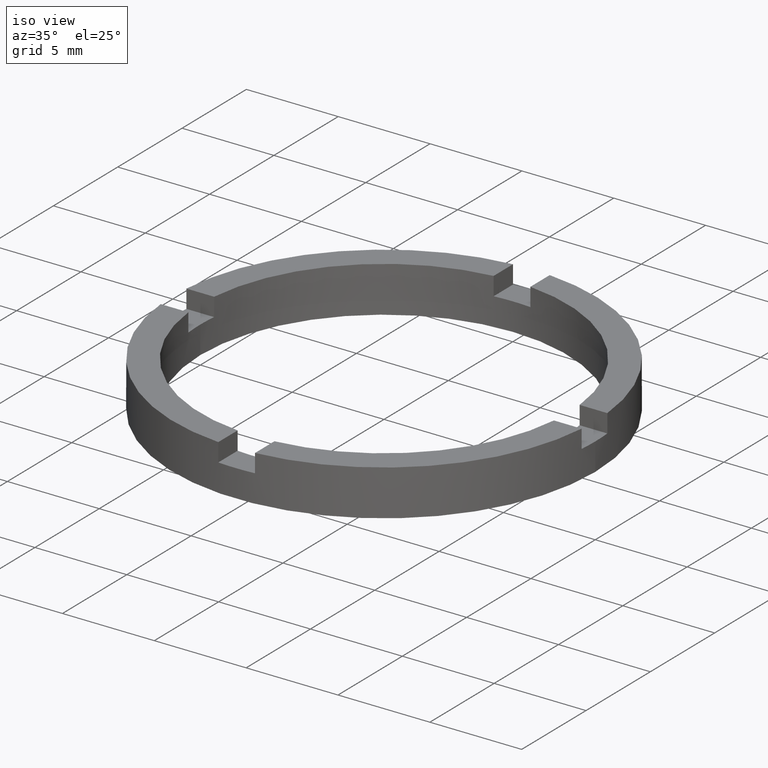
[diagram: clean part render]
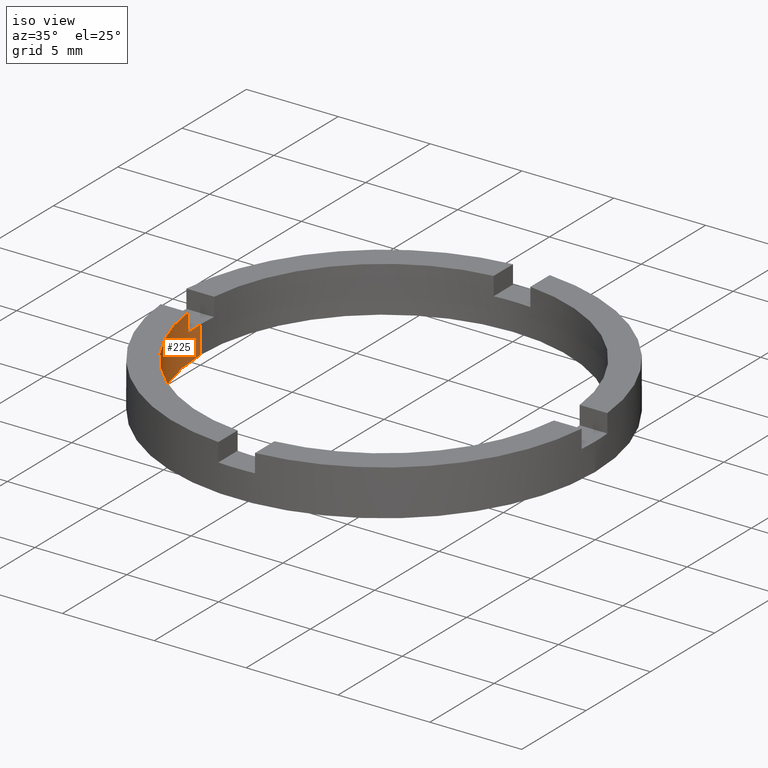
[diagram: same view with one face highlighted and labeled with its STEP entity id]
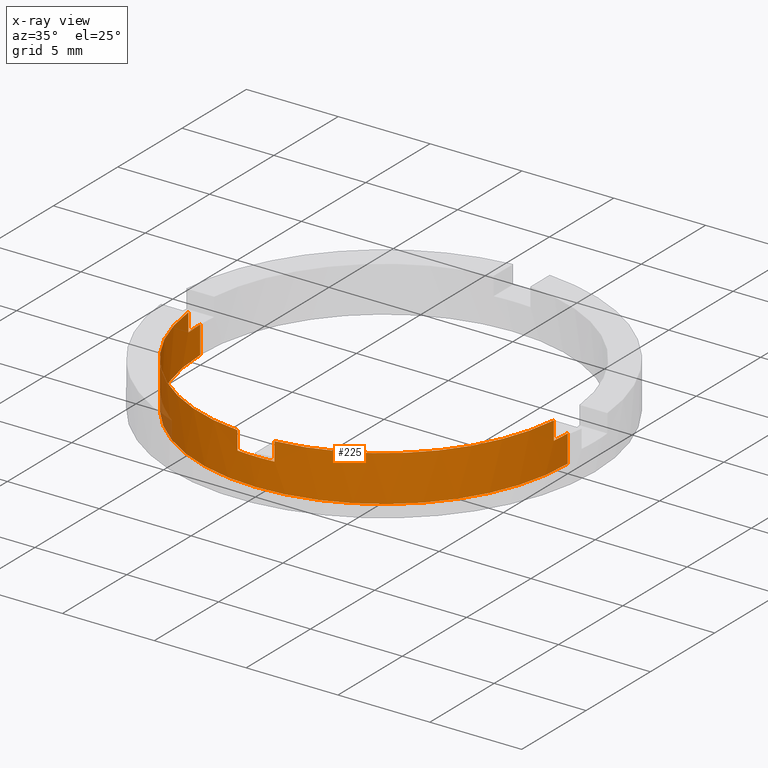
[diagram: x-ray of the same camera — body ghosted, the highlighted face saturated]
A machine part, iso view. The second image highlights one B-rep face of the part: STEP entity #225.
The next image is the same camera in x-ray: the body ghosted, the highlighted face saturated — about 1% of this face is hidden behind the body in this view.
In plain terms, the highlighted cylindrical surface (partial cylindrical patch) has radius 10 mm, axis along (-0, -0, -1).
Its self-contained STEP definition (entity closure, byte-faithful):
#7 = ORIENTED_EDGE ( 'NONE', *, *, #95, .F. ) ;
#13 = EDGE_CURVE ( 'NONE', #321, #689, #158, .T. ) ;
#18 = DIRECTION ( 'NONE',  ( -0.000000000000000000, -0.000000000000000000, -1.000000000000000000 ) ) ;
#19 = AXIS2_PLACEMENT_3D ( 'NONE', #138, #343, #533 ) ;
#26 = ORIENTED_EDGE ( 'NONE', *, *, #197, .T. ) ;
#29 = VERTEX_POINT ( 'NONE', #291 ) ;
#41 = VERTEX_POINT ( 'NONE', #611 ) ;
#45 = EDGE_CURVE ( 'NONE', #229, #321, #716, .T. ) ;
#57 = CARTESIAN_POINT ( 'NONE',  ( -1.000000000000163869, -9.949874371066179890, 2.500000000000000000 ) ) ;
#59 = EDGE_CURVE ( 'NONE', #316, #539, #708, .T. ) ;
#62 = DIRECTION ( 'NONE',  ( 1.000000000000000000, 0.000000000000000000, 0.000000000000000000 ) ) ;
#95 = EDGE_CURVE ( 'NONE', #29, #251, #421, .T. ) ;
#110 = DIRECTION ( 'NONE',  ( 1.000000000000000000, 0.000000000000000000, 0.000000000000000000 ) ) ;
#118 = CARTESIAN_POINT ( 'NONE',  ( -9.949874371066195877, -1.000000000000021760, 1.500000000000000000 ) ) ;
#130 = CIRCLE ( 'NONE', #484, 9.999999999999998224 ) ;
#132 = DIRECTION ( 'NONE',  ( -0.000000000000000000, -0.000000000000000000, -1.000000000000000000 ) ) ;
#138 = CARTESIAN_POINT ( 'NONE',  ( 0.000000000000000000, 0.000000000000000000, 1.500000000000000000 ) ) ;
#142 = LINE ( 'NONE', #779, #394 ) ;
#148 = CIRCLE ( 'NONE', #252, 9.999999999999998224 ) ;
#149 = VECTOR ( 'NONE', #283, 1000.000000000000000 ) ;
#155 = ORIENTED_EDGE ( 'NONE', *, *, #738, .F. ) ;
#158 = LINE ( 'NONE', #399, #448 ) ;
#161 = EDGE_LOOP ( 'NONE', ( #299, #762, #183, #155, #26, #7, #767, #241, #233, #504, #442, #219 ) ) ;
#170 = VERTEX_POINT ( 'NONE', #628 ) ;
#177 = DIRECTION ( 'NONE',  ( 0.000000000000000000, 0.000000000000000000, 1.000000000000000000 ) ) ;
#183 = ORIENTED_EDGE ( 'NONE', *, *, #527, .F. ) ;
#197 = EDGE_CURVE ( 'NONE', #41, #251, #718, .T. ) ;
#210 = CARTESIAN_POINT ( 'NONE',  ( -1.000000000000163869, -9.949874371066179890, 2.500000000000000000 ) ) ;
#219 = ORIENTED_EDGE ( 'NONE', *, *, #722, .F. ) ;
#225 = ADVANCED_FACE ( 'NONE', ( #682 ), #461, .F. ) ;
#228 = CARTESIAN_POINT ( 'NONE',  ( 0.000000000000000000, 0.000000000000000000, 1.500000000000000000 ) ) ;
#229 = VERTEX_POINT ( 'NONE', #630 ) ;
#233 = ORIENTED_EDGE ( 'NONE', *, *, #614, .T. ) ;
#238 = DIRECTION ( 'NONE',  ( -0.000000000000000000, -0.000000000000000000, -1.000000000000000000 ) ) ;
#241 = ORIENTED_EDGE ( 'NONE', *, *, #59, .F. ) ;
#242 = VERTEX_POINT ( 'NONE', #496 ) ;
#245 = DIRECTION ( 'NONE',  ( -0.000000000000000000, 0.000000000000000000, 1.000000000000000000 ) ) ;
#251 = VERTEX_POINT ( 'NONE', #118 ) ;
#252 = AXIS2_PLACEMENT_3D ( 'NONE', #505, #372, #253 ) ;
#253 = DIRECTION ( 'NONE',  ( 1.000000000000000000, 0.000000000000000000, 0.000000000000000000 ) ) ;
#269 = DIRECTION ( 'NONE',  ( -1.000000000000000000, 0.000000000000000000, 0.000000000000000000 ) ) ;
#283 = DIRECTION ( 'NONE',  ( 0.000000000000000000, 0.000000000000000000, 1.000000000000000000 ) ) ;
#288 = AXIS2_PLACEMENT_3D ( 'NONE', #228, #177, #486 ) ;
#291 = CARTESIAN_POINT ( 'NONE',  ( -9.949874371066195877, -1.000000000000021760, 2.500000000000000000 ) ) ;
#299 = ORIENTED_EDGE ( 'NONE', *, *, #45, .T. ) ;
#306 = CARTESIAN_POINT ( 'NONE',  ( -1.000000000000163869, -9.949874371066179890, 1.500000000000000000 ) ) ;
#316 = VERTEX_POINT ( 'NONE', #306 ) ;
#321 = VERTEX_POINT ( 'NONE', #780 ) ;
#326 = CARTESIAN_POINT ( 'NONE',  ( 0.000000000000000000, 0.000000000000000000, 1.500000000000000000 ) ) ;
#338 = CARTESIAN_POINT ( 'NONE',  ( 9.949874371066181666, -1.000000000000160094, 2.500000000000000000 ) ) ;
#343 = DIRECTION ( 'NONE',  ( 0.000000000000000000, 0.000000000000000000, 1.000000000000000000 ) ) ;
#372 = DIRECTION ( 'NONE',  ( 0.000000000000000000, 0.000000000000000000, 1.000000000000000000 ) ) ;
#378 = CARTESIAN_POINT ( 'NONE',  ( -9.999999999999998224, 0.000000000000000000, 2.500000000000000000 ) ) ;
#394 = VECTOR ( 'NONE', #238, 1000.000000000000000 ) ;
#399 = CARTESIAN_POINT ( 'NONE',  ( 9.999999999999998224, 1.224646799147353059E-15, 2.500000000000000000 ) ) ;
#404 = CIRCLE ( 'NONE', #449, 9.999999999999998224 ) ;
#421 = LINE ( 'NONE', #471, #435 ) ;
#432 = DIRECTION ( 'NONE',  ( 0.000000000000000000, 0.000000000000000000, 1.000000000000000000 ) ) ;
#435 = VECTOR ( 'NONE', #642, 1000.000000000000000 ) ;
#442 = ORIENTED_EDGE ( 'NONE', *, *, #621, .T. ) ;
#448 = VECTOR ( 'NONE', #490, 1000.000000000000000 ) ;
#449 = AXIS2_PLACEMENT_3D ( 'NONE', #616, #432, #62 ) ;
#460 = DIRECTION ( 'NONE',  ( 0.000000000000000000, 0.000000000000000000, 1.000000000000000000 ) ) ;
#461 = CYLINDRICAL_SURFACE ( 'NONE', #631, 9.999999999999998224 ) ;
#467 = CIRCLE ( 'NONE', #759, 9.999999999999998224 ) ;
#470 = LINE ( 'NONE', #338, #729 ) ;
#471 = CARTESIAN_POINT ( 'NONE',  ( -9.949874371066195877, -1.000000000000021760, 2.500000000000000000 ) ) ;
#472 = LINE ( 'NONE', #378, #473 ) ;
#473 = VECTOR ( 'NONE', #132, 1000.000000000000000 ) ;
#484 = AXIS2_PLACEMENT_3D ( 'NONE', #326, #245, #110 ) ;
#486 = DIRECTION ( 'NONE',  ( 1.000000000000000000, 0.000000000000000000, 0.000000000000000000 ) ) ;
#490 = DIRECTION ( 'NONE',  ( -0.000000000000000000, -0.000000000000000000, -1.000000000000000000 ) ) ;
#496 = CARTESIAN_POINT ( 'NONE',  ( 9.949874371066181666, -1.000000000000160094, 2.500000000000000000 ) ) ;
#504 = ORIENTED_EDGE ( 'NONE', *, *, #552, .F. ) ;
#505 = CARTESIAN_POINT ( 'NONE',  ( 0.000000000000000000, 0.000000000000000000, 2.500000000000000000 ) ) ;
#527 = EDGE_CURVE ( 'NONE', #583, #689, #404, .T. ) ;
#533 = DIRECTION ( 'NONE',  ( 1.000000000000000000, 0.000000000000000000, 0.000000000000000000 ) ) ;
#539 = VERTEX_POINT ( 'NONE', #57 ) ;
#550 = CARTESIAN_POINT ( 'NONE',  ( -9.999999999999998224, 0.000000000000000000, 0.000000000000000000 ) ) ;
#552 = EDGE_CURVE ( 'NONE', #710, #170, #142, .T. ) ;
#583 = VERTEX_POINT ( 'NONE', #550 ) ;
#611 = CARTESIAN_POINT ( 'NONE',  ( -9.999999999999998224, 0.000000000000000000, 1.500000000000000000 ) ) ;
#614 = EDGE_CURVE ( 'NONE', #316, #170, #130, .T. ) ;
#616 = CARTESIAN_POINT ( 'NONE',  ( 0.000000000000000000, 0.000000000000000000, 0.000000000000000000 ) ) ;
#621 = EDGE_CURVE ( 'NONE', #710, #242, #148, .T. ) ;
#623 = DIRECTION ( 'NONE',  ( 0.000000000000000000, 0.000000000000000000, 1.000000000000000000 ) ) ;
#628 = CARTESIAN_POINT ( 'NONE',  ( 0.9999999999998361311, -9.949874371066213641, 1.500000000000000000 ) ) ;
#630 = CARTESIAN_POINT ( 'NONE',  ( 9.949874371066181666, -1.000000000000160094, 1.500000000000000000 ) ) ;
#631 = AXIS2_PLACEMENT_3D ( 'NONE', #755, #18, #269 ) ;
#642 = DIRECTION ( 'NONE',  ( -0.000000000000000000, -0.000000000000000000, -1.000000000000000000 ) ) ;
#651 = CARTESIAN_POINT ( 'NONE',  ( 9.999999999999998224, 1.224646799147353059E-15, 0.000000000000000000 ) ) ;
#682 = FACE_OUTER_BOUND ( 'NONE', #161, .T. ) ;
#686 = CARTESIAN_POINT ( 'NONE',  ( 0.000000000000000000, 0.000000000000000000, 2.500000000000000000 ) ) ;
#689 = VERTEX_POINT ( 'NONE', #651 ) ;
#699 = CARTESIAN_POINT ( 'NONE',  ( 0.9999999999998361311, -9.949874371066213641, 2.500000000000000000 ) ) ;
#708 = LINE ( 'NONE', #210, #149 ) ;
#710 = VERTEX_POINT ( 'NONE', #699 ) ;
#716 = CIRCLE ( 'NONE', #288, 9.999999999999998224 ) ;
#718 = CIRCLE ( 'NONE', #19, 9.999999999999998224 ) ;
#722 = EDGE_CURVE ( 'NONE', #229, #242, #470, .T. ) ;
#729 = VECTOR ( 'NONE', #623, 1000.000000000000000 ) ;
#738 = EDGE_CURVE ( 'NONE', #41, #583, #472, .T. ) ;
#747 = DIRECTION ( 'NONE',  ( 1.000000000000000000, 0.000000000000000000, 0.000000000000000000 ) ) ;
#748 = EDGE_CURVE ( 'NONE', #29, #539, #467, .T. ) ;
#755 = CARTESIAN_POINT ( 'NONE',  ( 0.000000000000000000, 0.000000000000000000, 2.500000000000000000 ) ) ;
#759 = AXIS2_PLACEMENT_3D ( 'NONE', #686, #460, #747 ) ;
#762 = ORIENTED_EDGE ( 'NONE', *, *, #13, .T. ) ;
#767 = ORIENTED_EDGE ( 'NONE', *, *, #748, .T. ) ;
#779 = CARTESIAN_POINT ( 'NONE',  ( 0.9999999999998361311, -9.949874371066213641, 2.500000000000000000 ) ) ;
#780 = CARTESIAN_POINT ( 'NONE',  ( 9.999999999999998224, 1.224646799147353059E-15, 1.500000000000000000 ) ) ;